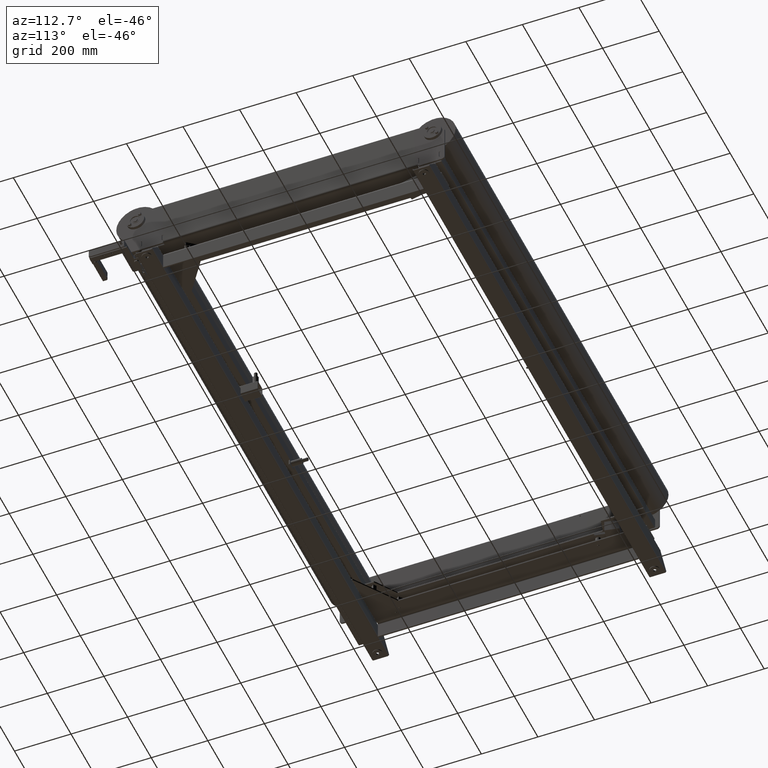
[diagram: clean part render]
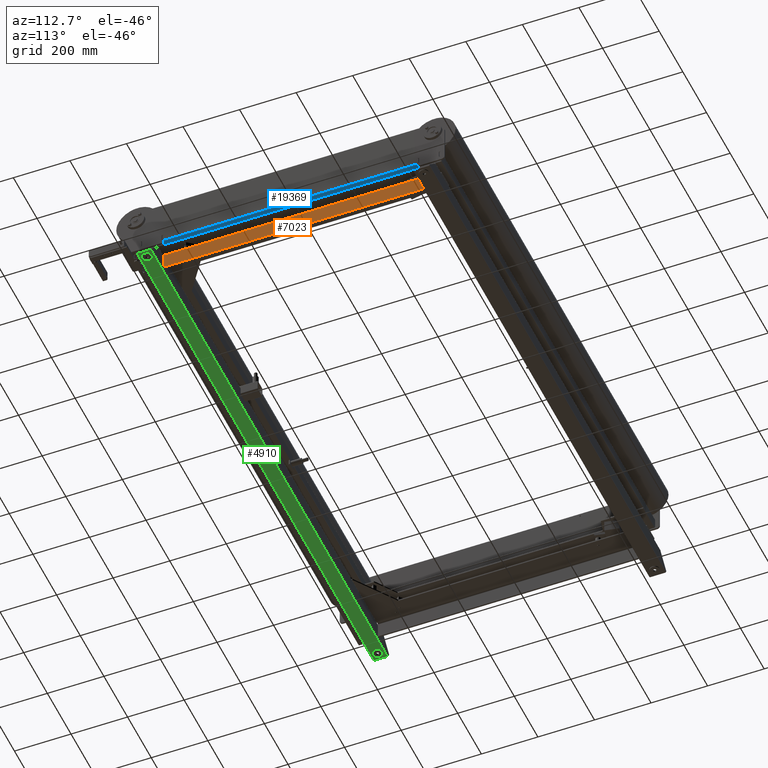
[diagram: same view with three faces highlighted in distinct colors, each labeled with its STEP entity id]
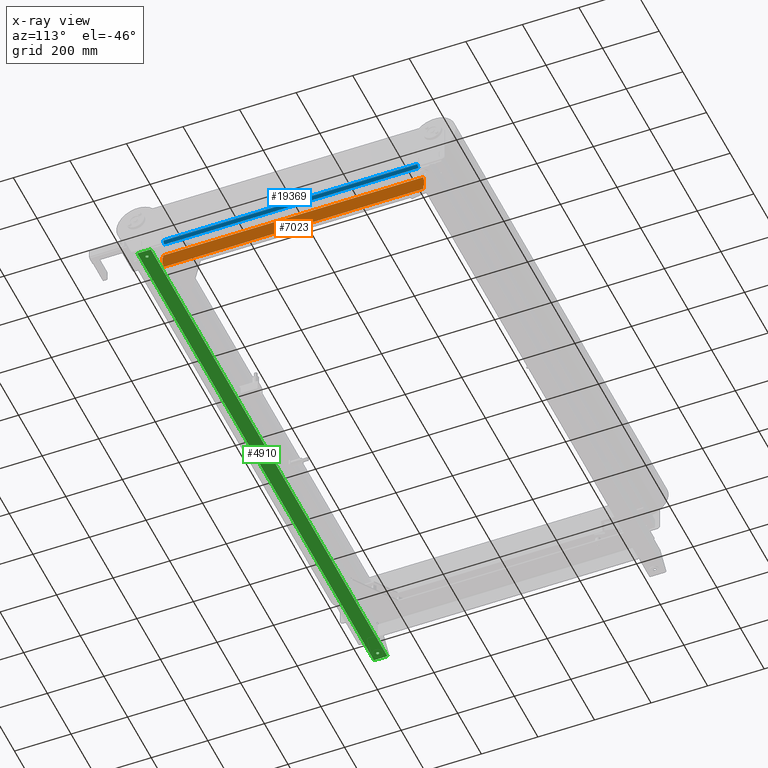
[diagram: x-ray of the same camera — body ghosted, the three highlighted faces saturated]
A machine part, auxiliary view with three faces highlighted in distinct colors.
The next image is the same camera in x-ray (body ghosted, the three faces saturated) — at least one of them is partly hidden behind the body in this view.
Their STEP definitions:

[orange] entity #7023 — the highlighted planar face has unit normal (1, -0, 0).
#6573=CARTESIAN_POINT('',(-90.000000000000043,388.0,-49.000000000000057));
#6574=VERTEX_POINT('',#6573);
#6591=CARTESIAN_POINT('',(-90.000000000000043,385.0,-49.000000000000057));
#6592=VERTEX_POINT('',#6591);
#6599=CARTESIAN_POINT('',(-90.000000000000043,385.0,-49.000000000000057));
#6600=DIRECTION('',(0.0,1.0,0.0));
#6601=VECTOR('',#6600,3.0);
#6602=LINE('',#6599,#6601);
#6603=EDGE_CURVE('',#6592,#6574,#6602,.T.);
#6615=CARTESIAN_POINT('',(-90.000000000000043,388.0,-19.000000000000057));
#6616=VERTEX_POINT('',#6615);
#6623=CARTESIAN_POINT('',(-90.000000000000043,385.0,-19.000000000000057));
#6624=VERTEX_POINT('',#6623);
#6625=CARTESIAN_POINT('',(-90.000000000000043,385.0,-19.000000000000057));
#6626=DIRECTION('',(0.0,1.0,0.0));
#6627=VECTOR('',#6626,3.0);
#6628=LINE('',#6625,#6627);
#6629=EDGE_CURVE('',#6624,#6616,#6628,.T.);
#6654=CARTESIAN_POINT('',(-90.000000000000043,388.0,-19.000000000000057));
#6655=DIRECTION('',(0.0,0.0,-1.0));
#6656=VECTOR('',#6655,30.0);
#6657=LINE('',#6654,#6656);
#6658=EDGE_CURVE('',#6616,#6574,#6657,.T.);
#6684=CARTESIAN_POINT('',(-90.000000000000043,385.0,-64.000000000000057));
#6685=VERTEX_POINT('',#6684);
#6692=CARTESIAN_POINT('',(-90.000000000000043,385.0,-49.000000000000057));
#6693=DIRECTION('',(0.0,0.0,-1.0));
#6694=VECTOR('',#6693,15.0);
#6695=LINE('',#6692,#6694);
#6696=EDGE_CURVE('',#6592,#6685,#6695,.T.);
#6707=CARTESIAN_POINT('',(-90.000000000000043,385.0,-9.000000000000057));
#6708=VERTEX_POINT('',#6707);
#6709=CARTESIAN_POINT('',(-90.000000000000043,385.0,-9.000000000000057));
#6710=DIRECTION('',(0.0,0.0,-1.0));
#6711=VECTOR('',#6710,10.0);
#6712=LINE('',#6709,#6711);
#6713=EDGE_CURVE('',#6708,#6624,#6712,.T.);
#6755=CARTESIAN_POINT('',(-90.000000000000043,-538.0,-18.999999999999986));
#6756=VERTEX_POINT('',#6755);
#6773=CARTESIAN_POINT('',(-90.000000000000043,-535.0,-18.999999999999986));
#6774=VERTEX_POINT('',#6773);
#6781=CARTESIAN_POINT('',(-90.000000000000043,-535.0,-18.999999999999986));
#6782=DIRECTION('',(0.0,-1.0,0.0));
#6783=VECTOR('',#6782,3.0);
#6784=LINE('',#6781,#6783);
#6785=EDGE_CURVE('',#6774,#6756,#6784,.T.);
#6797=CARTESIAN_POINT('',(-90.000000000000043,-538.0,-48.999999999999986));
#6798=VERTEX_POINT('',#6797);
#6805=CARTESIAN_POINT('',(-90.000000000000043,-535.0,-48.999999999999986));
#6806=VERTEX_POINT('',#6805);
#6807=CARTESIAN_POINT('',(-90.000000000000043,-535.0,-48.999999999999986));
#6808=DIRECTION('',(0.0,-1.0,0.0));
#6809=VECTOR('',#6808,3.0);
#6810=LINE('',#6807,#6809);
#6811=EDGE_CURVE('',#6806,#6798,#6810,.T.);
#6836=CARTESIAN_POINT('',(-90.000000000000043,-538.0,-48.999999999999986));
#6837=DIRECTION('',(0.0,0.0,1.0));
#6838=VECTOR('',#6837,30.0);
#6839=LINE('',#6836,#6838);
#6840=EDGE_CURVE('',#6798,#6756,#6839,.T.);
#6883=CARTESIAN_POINT('',(-90.000000000000043,-535.0,-9.000000000000057));
#6884=VERTEX_POINT('',#6883);
#6892=CARTESIAN_POINT('',(-90.000000000000043,-535.0,-18.999999999999986));
#6893=DIRECTION('',(0.0,0.0,1.0));
#6894=VECTOR('',#6893,9.999999999999929);
#6895=LINE('',#6892,#6894);
#6896=EDGE_CURVE('',#6774,#6884,#6895,.T.);
#6907=CARTESIAN_POINT('',(-90.000000000000043,-535.0,-64.000000000000057));
#6908=VERTEX_POINT('',#6907);
#6909=CARTESIAN_POINT('',(-90.000000000000043,-535.0,-64.000000000000057));
#6910=DIRECTION('',(0.0,0.0,1.0));
#6911=VECTOR('',#6910,15.000000000000071);
#6912=LINE('',#6909,#6911);
#6913=EDGE_CURVE('',#6908,#6806,#6912,.T.);
#6994=CARTESIAN_POINT('',(-90.000000000000043,-15.0,-4.000000000000057));
#6995=DIRECTION('',(-1.0,0.0,0.0));
#6996=DIRECTION('',(0.0,0.0,1.0));
#6997=AXIS2_PLACEMENT_3D('',#6994,#6995,#6996);
#6998=PLANE('',#6997);
#6999=ORIENTED_EDGE('',*,*,#6713,.T.);
#7000=ORIENTED_EDGE('',*,*,#6629,.T.);
#7001=ORIENTED_EDGE('',*,*,#6658,.T.);
#7002=ORIENTED_EDGE('',*,*,#6603,.F.);
#7003=ORIENTED_EDGE('',*,*,#6696,.T.);
#7004=CARTESIAN_POINT('',(-90.000000000000043,385.0,-64.000000000000057));
#7005=DIRECTION('',(0.0,-1.0,0.0));
#7006=VECTOR('',#7005,920.0);
#7007=LINE('',#7004,#7006);
#7008=EDGE_CURVE('',#6685,#6908,#7007,.T.);
#7009=ORIENTED_EDGE('',*,*,#7008,.T.);
#7010=ORIENTED_EDGE('',*,*,#6913,.T.);
#7011=ORIENTED_EDGE('',*,*,#6811,.T.);
#7012=ORIENTED_EDGE('',*,*,#6840,.T.);
#7013=ORIENTED_EDGE('',*,*,#6785,.F.);
#7014=ORIENTED_EDGE('',*,*,#6896,.T.);
#7015=CARTESIAN_POINT('',(-90.000000000000043,385.0,-9.000000000000057));
#7016=DIRECTION('',(0.0,-1.0,0.0));
#7017=VECTOR('',#7016,920.0);
#7018=LINE('',#7015,#7017);
#7019=EDGE_CURVE('',#6708,#6884,#7018,.T.);
#7020=ORIENTED_EDGE('',*,*,#7019,.F.);
#7021=EDGE_LOOP('',(#6999,#7000,#7001,#7002,#7003,#7009,#7010,#7011,#7012,#7013,#7014,#7020));
#7022=FACE_OUTER_BOUND('',#7021,.T.);
#7023=ADVANCED_FACE('',(#7022),#6998,.T.);

[blue] entity #19369 — the highlighted cylindrical surface (edge-blend (fillet) strip) has radius 10 mm, axis along (-0, -1, 0).
#19328=CARTESIAN_POINT('',(-50.0,-182.500000000000060,-9.0));
#19329=DIRECTION('',(0.0,1.0,0.0));
#19330=DIRECTION('',(-0.707106781186547,0.0,0.707106781186547));
#19331=AXIS2_PLACEMENT_3D('',#19328,#19329,#19330);
#19332=CYLINDRICAL_SURFACE('',#19331,10.0);
#19333=CARTESIAN_POINT('',(-50.000000000000121,79.650000000000006,1.000000000000000));
#19334=VERTEX_POINT('',#19333);
#19335=CARTESIAN_POINT('',(-60.000000000000021,79.650000000000006,-9.0));
#19336=VERTEX_POINT('',#19335);
#19337=CARTESIAN_POINT('',(-50.0,79.650000000000034,-9.0));
#19338=DIRECTION('',(0.0,-1.000000000000000,0.0));
#19339=DIRECTION('',(-0.707106781186547,0.0,0.707106781186547));
#19340=AXIS2_PLACEMENT_3D('',#19337,#19338,#19339);
#19341=CIRCLE('',#19340,9.999999999999998);
#19342=EDGE_CURVE('',#19334,#19336,#19341,.T.);
#19343=ORIENTED_EDGE('',*,*,#19342,.T.);
#19344=CARTESIAN_POINT('',(-60.000000000000121,-819.649999999999980,-9.0));
#19345=VERTEX_POINT('',#19344);
#19346=CARTESIAN_POINT('',(-60.000000000000021,79.650000000000006,-9.0));
#19347=DIRECTION('',(0.0,-1.0,0.0));
#19348=VECTOR('',#19347,899.299999999999950);
#19349=LINE('',#19346,#19348);
#19350=EDGE_CURVE('',#19336,#19345,#19349,.T.);
#19351=ORIENTED_EDGE('',*,*,#19350,.T.);
#19352=CARTESIAN_POINT('',(-50.000000000000121,-819.649999999999980,1.000000000000000));
#19353=VERTEX_POINT('',#19352);
#19354=CARTESIAN_POINT('',(-50.0,-819.649999999999860,-9.0));
#19355=DIRECTION('',(0.0,1.000000000000000,0.0));
#19356=DIRECTION('',(-0.707106781186547,0.0,0.707106781186547));
#19357=AXIS2_PLACEMENT_3D('',#19354,#19355,#19356);
#19358=CIRCLE('',#19357,9.999999999999998);
#19359=EDGE_CURVE('',#19345,#19353,#19358,.T.);
#19360=ORIENTED_EDGE('',*,*,#19359,.T.);
#19361=CARTESIAN_POINT('',(-50.000000000000121,-819.649999999999980,1.000000000000000));
#19362=DIRECTION('',(0.0,1.0,0.0));
#19363=VECTOR('',#19362,899.299999999999950);
#19364=LINE('',#19361,#19363);
#19365=EDGE_CURVE('',#19353,#19334,#19364,.T.);
#19366=ORIENTED_EDGE('',*,*,#19365,.T.);
#19367=EDGE_LOOP('',(#19343,#19351,#19360,#19366));
#19368=FACE_OUTER_BOUND('',#19367,.T.);
#19369=ADVANCED_FACE('',(#19368),#19332,.T.);

[green] entity #4910 — the highlighted planar face has unit normal (0, -0, -1).
#1441=CARTESIAN_POINT('',(32.000000000000014,1.0,-380.0));
#1442=VERTEX_POINT('',#1441);
#1451=CARTESIAN_POINT('',(32.0,1.000000000000001,-370.0));
#1452=VERTEX_POINT('',#1451);
#1453=CARTESIAN_POINT('',(32.0,1.0,-375.0));
#1454=DIRECTION('',(-1.0,0.0,0.0));
#1455=DIRECTION('',(0.0,0.0,-1.0));
#1456=AXIS2_PLACEMENT_3D('',#1453,#1454,#1455);
#1457=CIRCLE('',#1456,5.0);
#1458=EDGE_CURVE('',#1452,#1442,#1457,.T.);
#1483=CARTESIAN_POINT('',(32.000000000000014,1.0,1570.0));
#1484=VERTEX_POINT('',#1483);
#1493=CARTESIAN_POINT('',(32.0,1.000000000000001,1580.0));
#1494=VERTEX_POINT('',#1493);
#1495=CARTESIAN_POINT('',(32.0,1.0,1575.0));
#1496=DIRECTION('',(-1.0,0.0,0.0));
#1497=DIRECTION('',(0.0,0.0,-1.0));
#1498=AXIS2_PLACEMENT_3D('',#1495,#1496,#1497);
#1499=CIRCLE('',#1498,5.0);
#1500=EDGE_CURVE('',#1494,#1484,#1499,.T.);
#4823=CARTESIAN_POINT('',(32.000000000000014,-23.0,1600.0));
#4824=VERTEX_POINT('',#4823);
#4842=CARTESIAN_POINT('',(32.000000000000014,-23.0,-400.0));
#4843=VERTEX_POINT('',#4842);
#4851=CARTESIAN_POINT('',(32.000000000000014,-23.0,-400.0));
#4852=DIRECTION('',(0.0,0.0,1.0));
#4853=VECTOR('',#4852,2000.0);
#4854=LINE('',#4851,#4853);
#4855=EDGE_CURVE('',#4843,#4824,#4854,.T.);
#4860=CARTESIAN_POINT('',(32.000000000000014,31.0,-400.0));
#4861=DIRECTION('',(1.0,0.0,0.0));
#4862=DIRECTION('',(0.0,0.0,-1.0));
#4863=AXIS2_PLACEMENT_3D('',#4860,#4861,#4862);
#4864=PLANE('',#4863);
#4865=ORIENTED_EDGE('',*,*,#4855,.F.);
#4866=CARTESIAN_POINT('',(32.000000000000014,25.0,-400.0));
#4867=VERTEX_POINT('',#4866);
#4868=CARTESIAN_POINT('',(32.000000000000014,-23.0,-400.0));
#4869=DIRECTION('',(0.0,1.0,0.0));
#4870=VECTOR('',#4869,48.0);
#4871=LINE('',#4868,#4870);
#4872=EDGE_CURVE('',#4843,#4867,#4871,.T.);
#4873=ORIENTED_EDGE('',*,*,#4872,.T.);
#4874=CARTESIAN_POINT('',(32.000000000000014,25.0,1600.0));
#4875=VERTEX_POINT('',#4874);
#4876=CARTESIAN_POINT('',(32.000000000000014,25.0,1600.0));
#4877=DIRECTION('',(0.0,0.0,-1.0));
#4878=VECTOR('',#4877,2000.0);
#4879=LINE('',#4876,#4878);
#4880=EDGE_CURVE('',#4875,#4867,#4879,.T.);
#4881=ORIENTED_EDGE('',*,*,#4880,.F.);
#4882=CARTESIAN_POINT('',(32.000000000000014,25.0,1600.0));
#4883=DIRECTION('',(0.0,-1.0,0.0));
#4884=VECTOR('',#4883,48.0);
#4885=LINE('',#4882,#4884);
#4886=EDGE_CURVE('',#4875,#4824,#4885,.T.);
#4887=ORIENTED_EDGE('',*,*,#4886,.T.);
#4888=EDGE_LOOP('',(#4865,#4873,#4881,#4887));
#4889=FACE_OUTER_BOUND('',#4888,.T.);
#4890=CARTESIAN_POINT('',(32.0,1.0,-375.0));
#4891=DIRECTION('',(-1.0,0.0,0.0));
#4892=DIRECTION('',(0.0,0.0,-1.0));
#4893=AXIS2_PLACEMENT_3D('',#4890,#4891,#4892);
#4894=CIRCLE('',#4893,5.0);
#4895=EDGE_CURVE('',#1442,#1452,#4894,.T.);
#4896=ORIENTED_EDGE('',*,*,#4895,.T.);
#4897=ORIENTED_EDGE('',*,*,#1458,.T.);
#4898=EDGE_LOOP('',(#4896,#4897));
#4899=FACE_BOUND('',#4898,.T.);
#4900=CARTESIAN_POINT('',(32.0,1.0,1575.0));
#4901=DIRECTION('',(-1.0,0.0,0.0));
#4902=DIRECTION('',(0.0,0.0,-1.0));
#4903=AXIS2_PLACEMENT_3D('',#4900,#4901,#4902);
#4904=CIRCLE('',#4903,5.0);
#4905=EDGE_CURVE('',#1484,#1494,#4904,.T.);
#4906=ORIENTED_EDGE('',*,*,#4905,.T.);
#4907=ORIENTED_EDGE('',*,*,#1500,.T.);
#4908=EDGE_LOOP('',(#4906,#4907));
#4909=FACE_BOUND('',#4908,.T.);
#4910=ADVANCED_FACE('',(#4889,#4899,#4909),#4864,.T.);